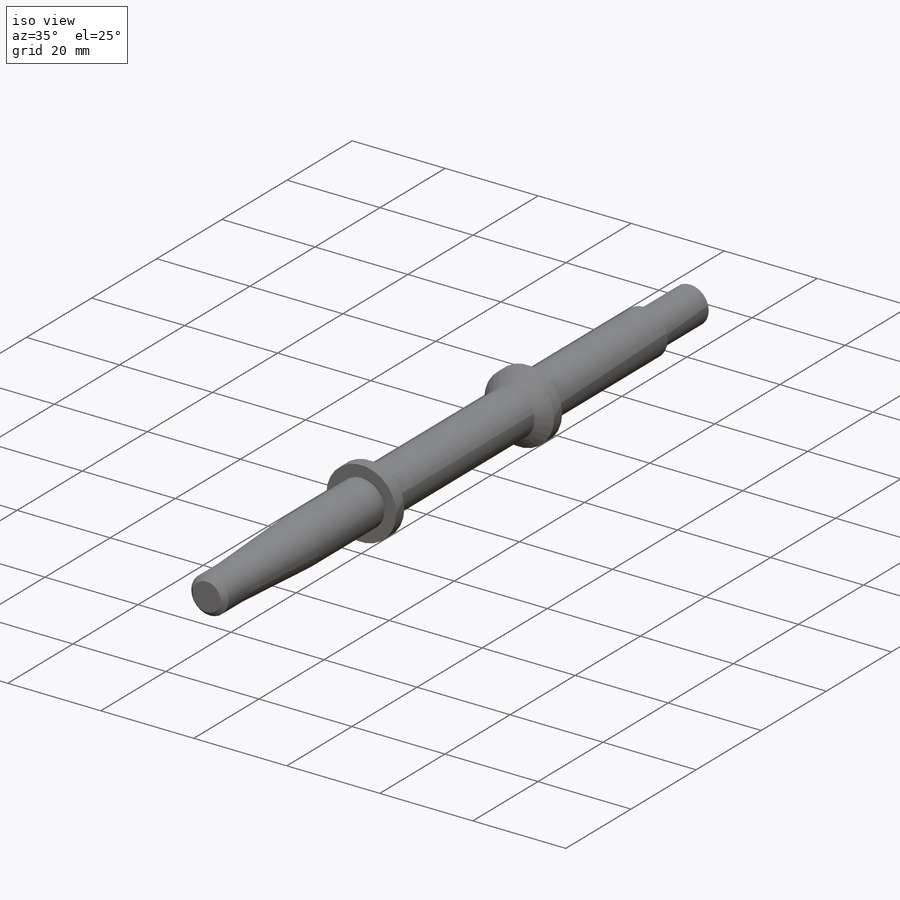
[diagram: iso view]
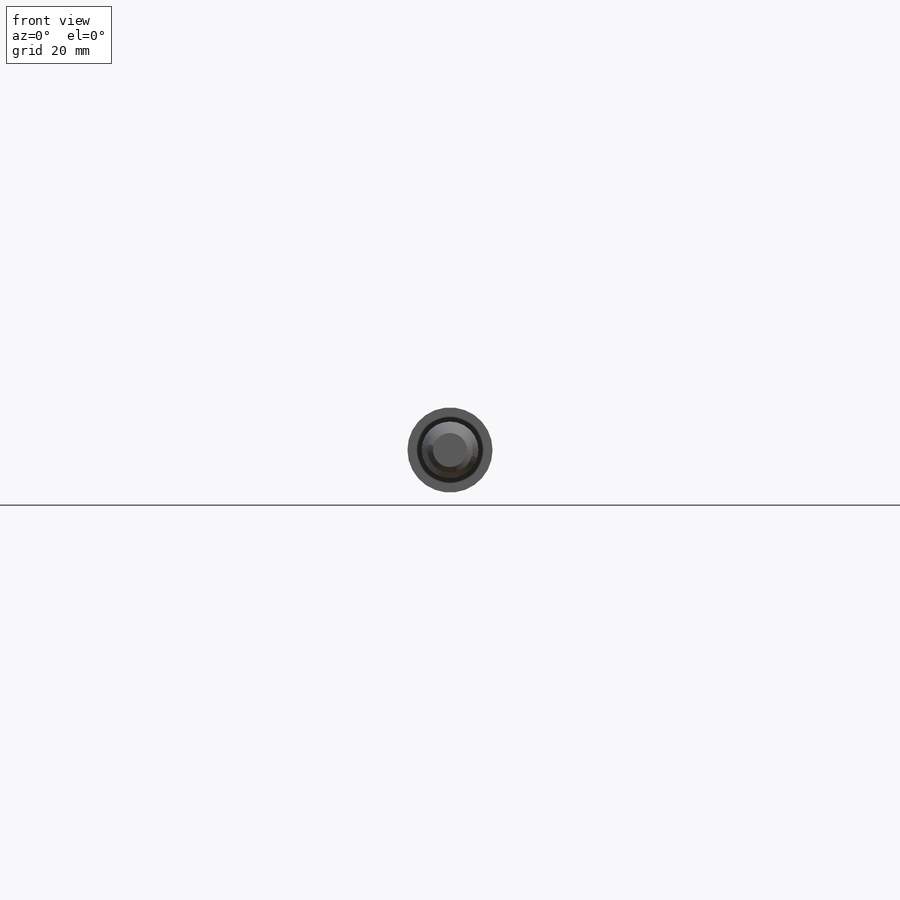
[diagram: front view]
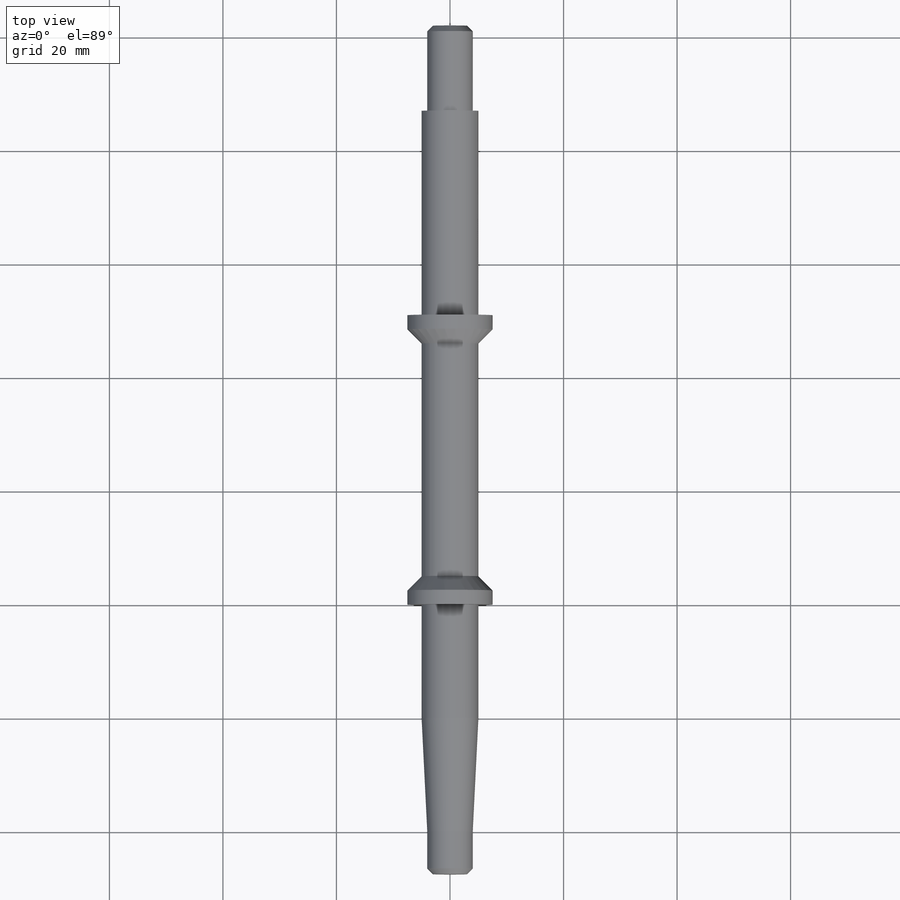
[diagram: top view]
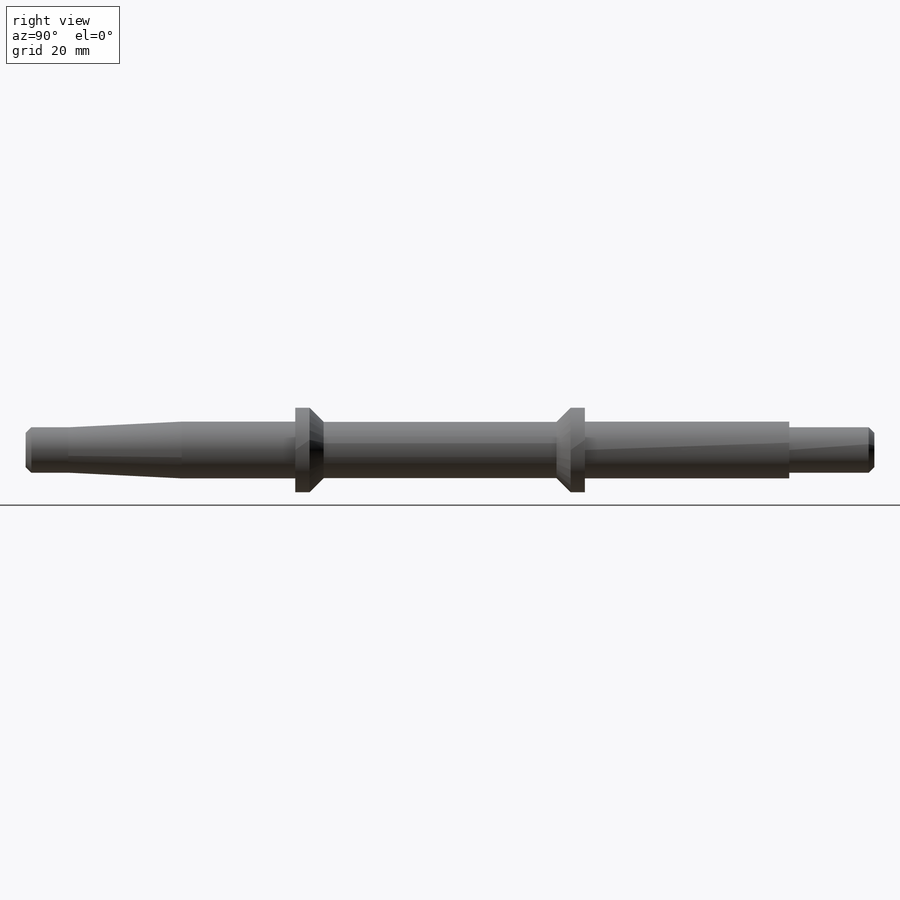
[diagram: right view]
SOLIDWORKS PART (.sldprt)
format: sldprt  version: not decoded by parser v0  size: 326,656 bytes
history: native  units: mm
features: sketch x7, extrude x6, thread x2, chamfer x2, material x1, plane x1, cut_extrude x1 (+13 scaffold rows collapsed)
feature tree (33):
  scaffold x13  (default folders/planes/origin — collapsed)
  material  "Ст20"
  sketch  "Эскиз1"  dims[D1=~13.065901mm]
  extrude  "Бобышка-Вытянуть1"  Depth=51mm
  sketch  "Эскиз2"  dims[D1=~4.104773mm]
  extrude  "Бобышка-Вытянуть2"  Depth=20mm
  sketch  "Эскиз3"  dims[D1=~3.800964mm]
  extrude  "Бобышка-Вытянуть3"  [1 undecoded]
  thread  "Условное изображение резьбы1"  Diameter=19mm  [1 undecoded]
  plane  "Плоскость1"  Offset=2.5mm
  sketch  "Эскиз4"  dims[D1=~4.886318mm]
  cut_extrude  "Вырез-Вытянуть1"  Depth=46mm
  sketch  "Эскиз5"  dims[D1=~2.314597mm]
  extrude  "Бобышка-Вытянуть4"  Depth=15mm
  sketch  "Эскиз6"
  extrude  "Бобышка-Вытянуть5"  Depth=20mm
  sketch  "Эскиз7"  dims[D1=~3.999967mm]
  extrude  "Бобышка-Вытянуть6"  [1 undecoded]
  thread  "Условное изображение резьбы2"  Diameter=7.5mm  [1 undecoded]
  chamfer  "Фаска1"  Distance=2.5mm Angle=45deg
  chamfer  "Фаска2"  Distance=1mm Angle=45deg
decode coverage: 15 of 18 modeling features carry decoded parameters
note: ~ marks probable driven/reference dimensions
note: 4 parameter values undecoded
note: suppression state not decoded; provenance and decode notes live in map.json
